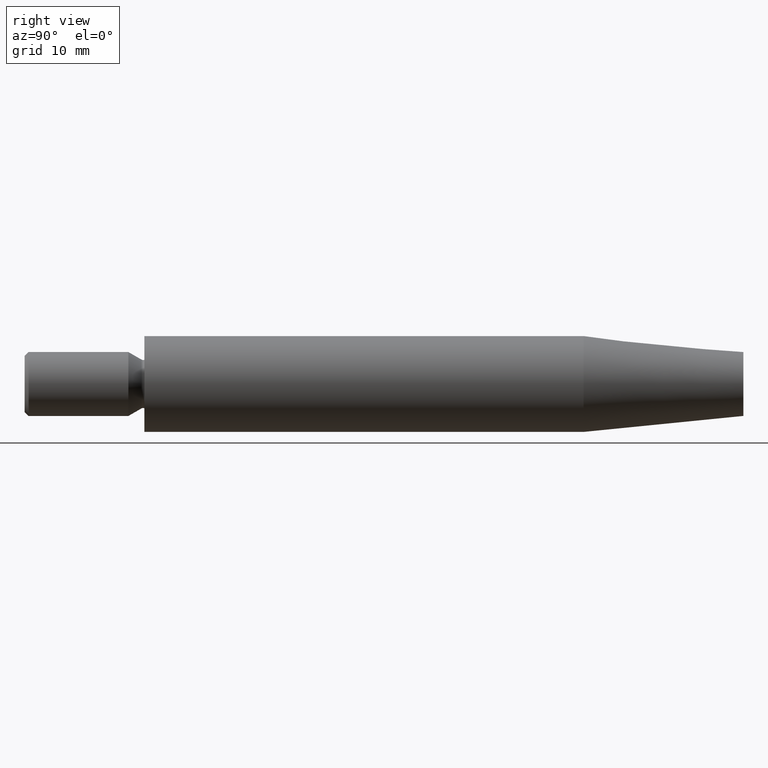
[diagram: clean part render]
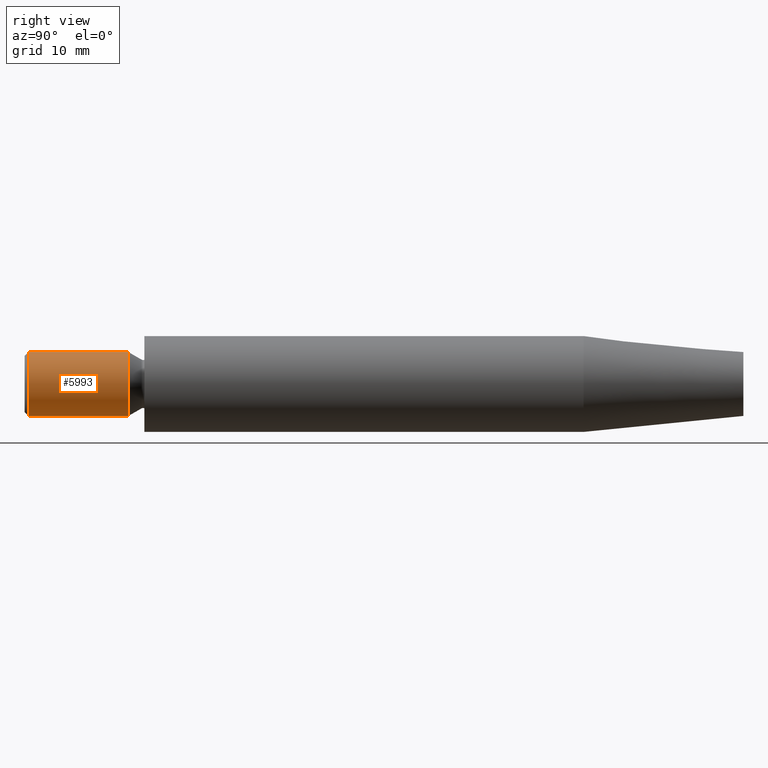
[diagram: same view with one face highlighted and labeled with its STEP entity id]
A machine part, right view. The second image highlights one B-rep face of the part: STEP entity #5993.
In plain terms, the highlighted cylindrical surface (bore or boss wall) has radius 4 mm, axis along (-0, -1, -0).
Its self-contained STEP definition (entity closure, byte-faithful):
#1646 = DIRECTION ( 'NONE',  ( 0.000000000000000000, 0.000000000000000000, -1.000000000000000000 ) ) ;
#1846 = DIRECTION ( 'NONE',  ( 0.000000000000000000, 0.000000000000000000, -1.000000000000000000 ) ) ;
#2287 = CYLINDRICAL_SURFACE ( 'NONE', #11060, 4.000000000000000888 ) ;
#2365 = ORIENTED_EDGE ( 'NONE', *, *, #3592, .T. ) ;
#3592 = EDGE_CURVE ( 'NONE', #8944, #8944, #5282, .T. ) ;
#3992 = AXIS2_PLACEMENT_3D ( 'NONE', #7687, #6648, #1646 ) ;
#4171 = EDGE_LOOP ( 'NONE', ( #2365 ) ) ;
#5258 = CIRCLE ( 'NONE', #9733, 4.000000000000000888 ) ;
#5282 = CIRCLE ( 'NONE', #3992, 4.000000000000000000 ) ;
#5993 = ADVANCED_FACE ( 'NONE', ( #9765, #6030 ), #2287, .T. ) ;
#6011 = ORIENTED_EDGE ( 'NONE', *, *, #6012, .T. ) ;
#6012 = EDGE_CURVE ( 'NONE', #10822, #10822, #5258, .T. ) ;
#6030 = FACE_OUTER_BOUND ( 'NONE', #4171, .T. ) ;
#6648 = DIRECTION ( 'NONE',  ( -0.000000000000000000, -1.000000000000000000, -0.000000000000000000 ) ) ;
#6862 = CARTESIAN_POINT ( 'NONE',  ( 0.000000000000000000, -14.50000000000000533, 0.000000000000000000 ) ) ;
#7077 = CARTESIAN_POINT ( 'NONE',  ( 0.000000000000000000, -2.000000000000000000, -4.000000000000000000 ) ) ;
#7676 = CARTESIAN_POINT ( 'NONE',  ( 0.000000000000000000, -15.00000000000000355, 0.000000000000000000 ) ) ;
#7687 = CARTESIAN_POINT ( 'NONE',  ( 0.000000000000000000, -2.000000000000000000, 0.000000000000000000 ) ) ;
#8944 = VERTEX_POINT ( 'NONE', #7077 ) ;
#9733 = AXIS2_PLACEMENT_3D ( 'NONE', #6862, #10680, #12680 ) ;
#9765 = FACE_OUTER_BOUND ( 'NONE', #10467, .T. ) ;
#9943 = CARTESIAN_POINT ( 'NONE',  ( 0.000000000000000000, -14.50000000000000533, -4.000000000000000888 ) ) ;
#10467 = EDGE_LOOP ( 'NONE', ( #6011 ) ) ;
#10680 = DIRECTION ( 'NONE',  ( 0.000000000000000000, 1.000000000000000000, 0.000000000000000000 ) ) ;
#10728 = DIRECTION ( 'NONE',  ( -0.000000000000000000, -1.000000000000000000, -0.000000000000000000 ) ) ;
#10822 = VERTEX_POINT ( 'NONE', #9943 ) ;
#11060 = AXIS2_PLACEMENT_3D ( 'NONE', #7676, #10728, #1846 ) ;
#12680 = DIRECTION ( 'NONE',  ( 0.000000000000000000, 0.000000000000000000, -1.000000000000000000 ) ) ;